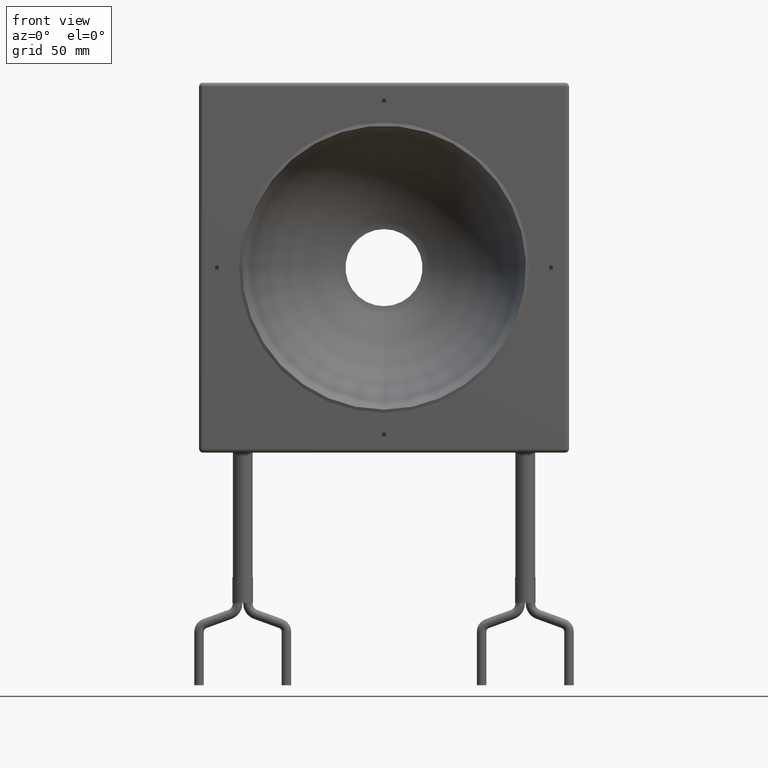
[diagram: clean part render]
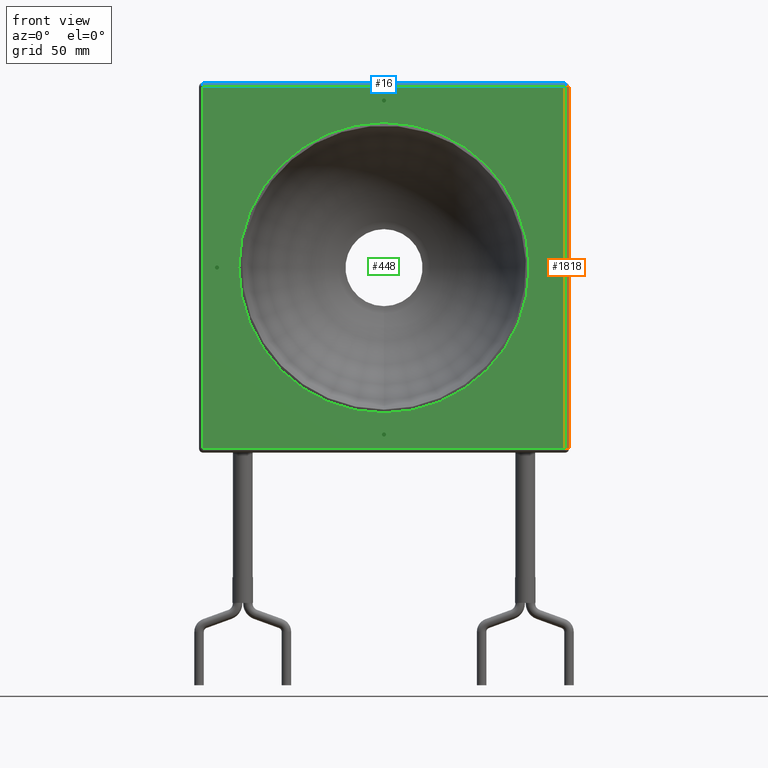
[diagram: same view with three faces highlighted in distinct colors, each labeled with its STEP entity id]
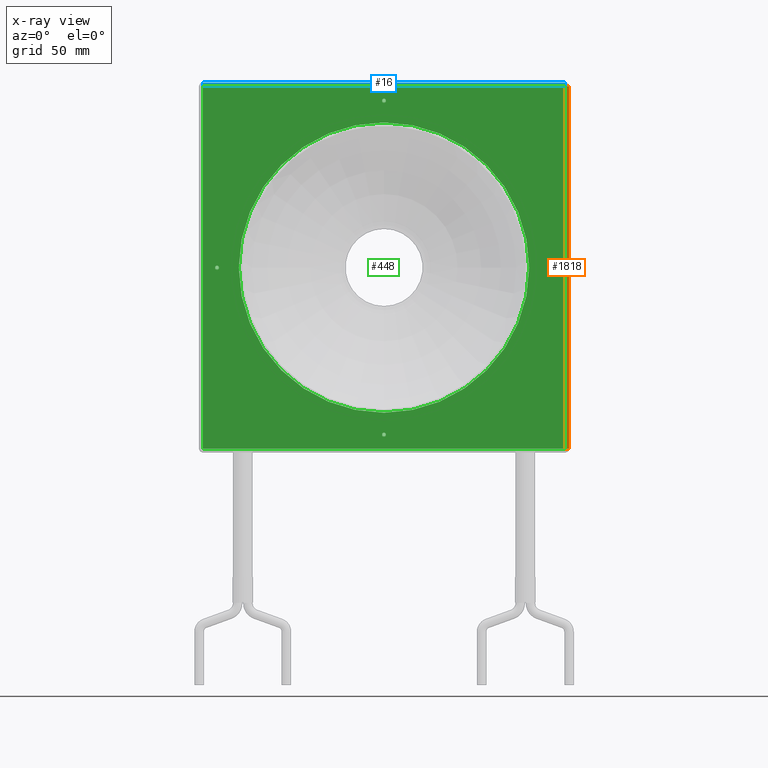
[diagram: x-ray of the same camera — body ghosted, the three highlighted faces saturated]
A machine part, front view with three faces highlighted in distinct colors.
The next image is the same camera in x-ray (body ghosted, the three faces saturated) — at least one of them is partly hidden behind the body in this view.
Their STEP definitions:

[orange] entity #1818 — the highlighted cylindrical surface (edge-blend (fillet) strip) has radius 1.5 mm, axis along (0, -0, -1).
#75 = EDGE_LOOP ( 'NONE', ( #1056, #930, #79, #1327 ) ) ;
#79 = ORIENTED_EDGE ( 'NONE', *, *, #1108, .F. ) ;
#119 = FACE_OUTER_BOUND ( 'NONE', #75, .T. ) ;
#169 = VECTOR ( 'NONE', #637, 1000.000000000000000 ) ;
#193 = CIRCLE ( 'NONE', #1643, 1.500000000000001300 ) ;
#196 = CARTESIAN_POINT ( 'NONE',  ( 70.50000000000000000, -1.565414464721471000E-014, -70.50000000000000000 ) ) ;
#215 = LINE ( 'NONE', #274, #1750 ) ;
#274 = CARTESIAN_POINT ( 'NONE',  ( 70.50000000000000000, -1.487698852997709800E-014, -66.99999999999998600 ) ) ;
#374 = VERTEX_POINT ( 'NONE', #196 ) ;
#407 = EDGE_CURVE ( 'NONE', #1473, #837, #1032, .T. ) ;
#431 = CIRCLE ( 'NONE', #1006, 1.500000000000001300 ) ;
#453 = CARTESIAN_POINT ( 'NONE',  ( 70.50000000000000000, 1.499999999999987800, -70.50000000000000000 ) ) ;
#588 = CARTESIAN_POINT ( 'NONE',  ( 72.00000000000001400, 1.499999999999987600, -72.00000000000000000 ) ) ;
#610 = DIRECTION ( 'NONE',  ( -1.000000000000000000, 0.0000000000000000000, 0.0000000000000000000 ) ) ;
#637 = DIRECTION ( 'NONE',  ( 0.0000000000000000000, -2.220446049250313600E-016, -1.000000000000000000 ) ) ;
#766 = CARTESIAN_POINT ( 'NONE',  ( 70.50000000000000000, 1.499999999999987600, -72.00000000000000000 ) ) ;
#837 = VERTEX_POINT ( 'NONE', #1590 ) ;
#849 = CARTESIAN_POINT ( 'NONE',  ( 70.50000000000000000, 1.500000000000015500, 70.50000000000018500 ) ) ;
#908 = DIRECTION ( 'NONE',  ( 0.0000000000000000000, -2.220446049250313600E-016, -1.000000000000000000 ) ) ;
#924 = AXIS2_PLACEMENT_3D ( 'NONE', #766, #908, #1637 ) ;
#930 = ORIENTED_EDGE ( 'NONE', *, *, #1740, .F. ) ;
#1000 = DIRECTION ( 'NONE',  ( 1.000000000000000000, 0.0000000000000000000, 9.251858538542962800E-015 ) ) ;
#1006 = AXIS2_PLACEMENT_3D ( 'NONE', #849, #1863, #1000 ) ;
#1032 = LINE ( 'NONE', #588, #169 ) ;
#1056 = ORIENTED_EDGE ( 'NONE', *, *, #1494, .T. ) ;
#1108 = EDGE_CURVE ( 'NONE', #837, #374, #193, .T. ) ;
#1172 = VERTEX_POINT ( 'NONE', #1640 ) ;
#1180 = DIRECTION ( 'NONE',  ( -0.0000000000000000000, 2.220446049250313600E-016, 1.000000000000000000 ) ) ;
#1220 = CYLINDRICAL_SURFACE ( 'NONE', #924, 1.500000000000000000 ) ;
#1276 = CARTESIAN_POINT ( 'NONE',  ( 72.00000000000001400, 1.500000000000019100, 70.50000000000019900 ) ) ;
#1327 = ORIENTED_EDGE ( 'NONE', *, *, #407, .F. ) ;
#1473 = VERTEX_POINT ( 'NONE', #1276 ) ;
#1494 = EDGE_CURVE ( 'NONE', #1473, #1172, #431, .T. ) ;
#1498 = DIRECTION ( 'NONE',  ( 0.0000000000000000000, 0.0000000000000000000, -1.000000000000000000 ) ) ;
#1590 = CARTESIAN_POINT ( 'NONE',  ( 72.00000000000001400, 1.499999999999987800, -70.50000000000000000 ) ) ;
#1637 = DIRECTION ( 'NONE',  ( 0.0000000000000000000, 1.000000000000000000, 0.0000000000000000000 ) ) ;
#1640 = CARTESIAN_POINT ( 'NONE',  ( 70.50000000000000000, 1.565414464721475100E-014, 70.50000000000018500 ) ) ;
#1643 = AXIS2_PLACEMENT_3D ( 'NONE', #453, #1498, #610 ) ;
#1740 = EDGE_CURVE ( 'NONE', #374, #1172, #215, .T. ) ;
#1750 = VECTOR ( 'NONE', #1180, 1000.000000000000000 ) ;
#1818 = ADVANCED_FACE ( 'NONE', ( #119 ), #1220, .T. ) ;
#1863 = DIRECTION ( 'NONE',  ( 9.251858538542962800E-015, -0.0000000000000000000, -1.000000000000000000 ) ) ;

[blue] entity #16 — the highlighted cylindrical surface (edge-blend (fillet) strip) has radius 1.5 mm, axis along (-1, 0, 0).
#4 = CARTESIAN_POINT ( 'NONE',  ( -70.49999999999998600, 1.565414464721475100E-014, 70.50000000000018500 ) ) ;
#16 = ADVANCED_FACE ( 'NONE', ( #367 ), #439, .T. ) ;
#219 = VECTOR ( 'NONE', #1416, 1000.000000000000000 ) ;
#233 = EDGE_CURVE ( 'NONE', #1172, #1149, #874, .T. ) ;
#251 = AXIS2_PLACEMENT_3D ( 'NONE', #404, #1457, #564 ) ;
#270 = CARTESIAN_POINT ( 'NONE',  ( -70.49999999999998600, 1.500000000000015500, 70.50000000000018500 ) ) ;
#341 = EDGE_LOOP ( 'NONE', ( #1876, #1169, #627, #591 ) ) ;
#358 = CARTESIAN_POINT ( 'NONE',  ( -71.99999999999998600, 1.500000000000015100, 72.00000000000019900 ) ) ;
#367 = FACE_OUTER_BOUND ( 'NONE', #341, .T. ) ;
#404 = CARTESIAN_POINT ( 'NONE',  ( 70.50000000000000000, 1.500000000000015500, 70.50000000000019900 ) ) ;
#427 = DIRECTION ( 'NONE',  ( 0.0000000000000000000, 0.0000000000000000000, 1.000000000000000000 ) ) ;
#439 = CYLINDRICAL_SURFACE ( 'NONE', #1143, 1.500000000000001300 ) ;
#454 = DIRECTION ( 'NONE',  ( 0.0000000000000000000, 0.0000000000000000000, 1.000000000000000000 ) ) ;
#553 = AXIS2_PLACEMENT_3D ( 'NONE', #270, #1321, #427 ) ;
#564 = DIRECTION ( 'NONE',  ( 0.0000000000000000000, 0.0000000000000000000, -1.000000000000000000 ) ) ;
#591 = ORIENTED_EDGE ( 'NONE', *, *, #233, .F. ) ;
#608 = VECTOR ( 'NONE', #684, 1000.000000000000000 ) ;
#627 = ORIENTED_EDGE ( 'NONE', *, *, #1009, .F. ) ;
#678 = CARTESIAN_POINT ( 'NONE',  ( 72.00000000000001400, 1.565414464721475100E-014, 70.50000000000018500 ) ) ;
#684 = DIRECTION ( 'NONE',  ( -1.000000000000000000, 0.0000000000000000000, 0.0000000000000000000 ) ) ;
#769 = CARTESIAN_POINT ( 'NONE',  ( 72.00000000000001400, 1.500000000000015500, 70.50000000000018500 ) ) ;
#803 = CIRCLE ( 'NONE', #553, 1.500000000000001300 ) ;
#874 = LINE ( 'NONE', #678, #608 ) ;
#889 = CARTESIAN_POINT ( 'NONE',  ( -70.49999999999998600, 1.500000000000015500, 72.00000000000019900 ) ) ;
#1008 = CIRCLE ( 'NONE', #251, 1.500000000000001300 ) ;
#1009 = EDGE_CURVE ( 'NONE', #1149, #1054, #803, .T. ) ;
#1054 = VERTEX_POINT ( 'NONE', #889 ) ;
#1066 = CARTESIAN_POINT ( 'NONE',  ( 70.50000000000000000, 1.500000000000015500, 72.00000000000019900 ) ) ;
#1143 = AXIS2_PLACEMENT_3D ( 'NONE', #769, #1354, #454 ) ;
#1149 = VERTEX_POINT ( 'NONE', #4 ) ;
#1169 = ORIENTED_EDGE ( 'NONE', *, *, #1373, .F. ) ;
#1172 = VERTEX_POINT ( 'NONE', #1640 ) ;
#1321 = DIRECTION ( 'NONE',  ( -1.000000000000000000, 0.0000000000000000000, 0.0000000000000000000 ) ) ;
#1354 = DIRECTION ( 'NONE',  ( -1.000000000000000000, 0.0000000000000000000, 0.0000000000000000000 ) ) ;
#1367 = LINE ( 'NONE', #358, #219 ) ;
#1373 = EDGE_CURVE ( 'NONE', #1054, #1857, #1367, .T. ) ;
#1416 = DIRECTION ( 'NONE',  ( 1.000000000000000000, -0.0000000000000000000, -0.0000000000000000000 ) ) ;
#1457 = DIRECTION ( 'NONE',  ( -1.000000000000000000, -0.0000000000000000000, 0.0000000000000000000 ) ) ;
#1601 = EDGE_CURVE ( 'NONE', #1172, #1857, #1008, .T. ) ;
#1640 = CARTESIAN_POINT ( 'NONE',  ( 70.50000000000000000, 1.565414464721475100E-014, 70.50000000000018500 ) ) ;
#1857 = VERTEX_POINT ( 'NONE', #1066 ) ;
#1876 = ORIENTED_EDGE ( 'NONE', *, *, #1601, .T. ) ;

[green] entity #448 — the highlighted planar face has unit normal (0, -1, 0).
#4 = CARTESIAN_POINT ( 'NONE',  ( -70.49999999999998600, 1.565414464721475100E-014, 70.50000000000018500 ) ) ;
#28 = DIRECTION ( 'NONE',  ( 0.0000000000000000000, -2.220446049250313600E-016, -1.000000000000000000 ) ) ;
#33 = CARTESIAN_POINT ( 'NONE',  ( -7.960204194457797300E-015, -1.461053500406706300E-014, -65.79999999999999700 ) ) ;
#47 = EDGE_LOOP ( 'NONE', ( #1083, #1916, #1267, #980 ) ) ;
#54 = CARTESIAN_POINT ( 'NONE',  ( 65.00000000000000000, 2.549931246368700700E-028, 1.148386941096646300E-012 ) ) ;
#74 = CIRCLE ( 'NONE', #1499, 0.7999999999999951600 ) ;
#101 = DIRECTION ( 'NONE',  ( 0.0000000000000000000, -2.220446049250313100E-016, -1.000000000000000000 ) ) ;
#124 = FACE_BOUND ( 'NONE', #858, .T. ) ;
#151 = VERTEX_POINT ( 'NONE', #649 ) ;
#185 = EDGE_CURVE ( 'NONE', #235, #235, #1305, .T. ) ;
#188 = DIRECTION ( 'NONE',  ( 0.0000000000000000000, -2.220446049250313600E-016, -1.000000000000000000 ) ) ;
#196 = CARTESIAN_POINT ( 'NONE',  ( 70.50000000000000000, -1.565414464721471000E-014, -70.50000000000000000 ) ) ;
#215 = LINE ( 'NONE', #274, #1750 ) ;
#225 = CARTESIAN_POINT ( 'NONE',  ( -7.960204194457797300E-015, -1.443289932012703800E-014, -65.00000000000000000 ) ) ;
#228 = ORIENTED_EDGE ( 'NONE', *, *, #884, .F. ) ;
#233 = EDGE_CURVE ( 'NONE', #1172, #1149, #874, .T. ) ;
#235 = VERTEX_POINT ( 'NONE', #1666 ) ;
#245 = ORIENTED_EDGE ( 'NONE', *, *, #1910, .F. ) ;
#260 = EDGE_LOOP ( 'NONE', ( #1147 ) ) ;
#265 = CIRCLE ( 'NONE', #1190, 0.7999999999999951600 ) ;
#274 = CARTESIAN_POINT ( 'NONE',  ( 70.50000000000000000, -1.487698852997709800E-014, -66.99999999999998600 ) ) ;
#280 = EDGE_CURVE ( 'NONE', #594, #594, #74, .T. ) ;
#374 = VERTEX_POINT ( 'NONE', #196 ) ;
#376 = DIRECTION ( 'NONE',  ( 0.0000000000000000000, -2.220446049250313100E-016, -1.000000000000000000 ) ) ;
#397 = EDGE_CURVE ( 'NONE', #685, #374, #1758, .T. ) ;
#448 = ADVANCED_FACE ( 'NONE', ( #938, #1721, #540, #993, #124, #1671 ), #1313, .T. ) ;
#499 = CARTESIAN_POINT ( 'NONE',  ( -4.406197628981090000E-013, 1.425526363618701700E-014, 64.20000000000001700 ) ) ;
#519 = CARTESIAN_POINT ( 'NONE',  ( -70.49999999999998600, -1.565414464721471000E-014, -70.50000000000000000 ) ) ;
#540 = FACE_BOUND ( 'NONE', #260, .T. ) ;
#569 = ORIENTED_EDGE ( 'NONE', *, *, #1312, .F. ) ;
#594 = VERTEX_POINT ( 'NONE', #33 ) ;
#608 = VECTOR ( 'NONE', #684, 1000.000000000000000 ) ;
#649 = CARTESIAN_POINT ( 'NONE',  ( -65.00000000000000000, -1.776356839401734900E-016, -0.8000000000006682900 ) ) ;
#678 = CARTESIAN_POINT ( 'NONE',  ( 72.00000000000001400, 1.565414464721475100E-014, 70.50000000000018500 ) ) ;
#679 = DIRECTION ( 'NONE',  ( 0.0000000000000000000, -2.220446049250313600E-016, -1.000000000000000000 ) ) ;
#684 = DIRECTION ( 'NONE',  ( -1.000000000000000000, 0.0000000000000000000, 0.0000000000000000000 ) ) ;
#685 = VERTEX_POINT ( 'NONE', #519 ) ;
#697 = ORIENTED_EDGE ( 'NONE', *, *, #185, .T. ) ;
#715 = EDGE_CURVE ( 'NONE', #1149, #685, #870, .T. ) ;
#749 = EDGE_LOOP ( 'NONE', ( #697 ) ) ;
#774 = CIRCLE ( 'NONE', #1797, 0.7999999999999954900 ) ;
#820 = VERTEX_POINT ( 'NONE', #499 ) ;
#827 = CARTESIAN_POINT ( 'NONE',  ( 0.0000000000000000000, 0.0000000000000000000, 0.0000000000000000000 ) ) ;
#858 = EDGE_LOOP ( 'NONE', ( #569 ) ) ;
#868 = CARTESIAN_POINT ( 'NONE',  ( 72.00000000000001400, -1.487698852997709800E-014, -66.99999999999998600 ) ) ;
#870 = LINE ( 'NONE', #1704, #1644 ) ;
#873 = CARTESIAN_POINT ( 'NONE',  ( 72.00000000000001400, -1.565414464721471000E-014, -70.50000000000000000 ) ) ;
#874 = LINE ( 'NONE', #678, #608 ) ;
#879 = DIRECTION ( 'NONE',  ( 1.000000000000000000, -0.0000000000000000000, -0.0000000000000000000 ) ) ;
#884 = EDGE_CURVE ( 'NONE', #820, #820, #265, .T. ) ;
#929 = DIRECTION ( 'NONE',  ( 0.0000000000000000000, -1.000000000000000000, 2.220446049250313600E-016 ) ) ;
#938 = FACE_OUTER_BOUND ( 'NONE', #47, .T. ) ;
#976 = DIRECTION ( 'NONE',  ( 0.0000000000000000000, -1.000000000000000000, 2.220446049250313600E-016 ) ) ;
#977 = DIRECTION ( 'NONE',  ( 0.0000000000000000000, 0.0000000000000000000, -1.000000000000000000 ) ) ;
#980 = ORIENTED_EDGE ( 'NONE', *, *, #397, .T. ) ;
#993 = FACE_BOUND ( 'NONE', #1191, .T. ) ;
#1011 = DIRECTION ( 'NONE',  ( 0.0000000000000000000, -1.000000000000000000, 2.220446049250313600E-016 ) ) ;
#1013 = AXIS2_PLACEMENT_3D ( 'NONE', #827, #1845, #977 ) ;
#1068 = AXIS2_PLACEMENT_3D ( 'NONE', #868, #976, #1480 ) ;
#1083 = ORIENTED_EDGE ( 'NONE', *, *, #1740, .T. ) ;
#1103 = DIRECTION ( 'NONE',  ( 0.0000000000000000000, -1.000000000000000000, 2.220446049250313600E-016 ) ) ;
#1147 = ORIENTED_EDGE ( 'NONE', *, *, #280, .F. ) ;
#1149 = VERTEX_POINT ( 'NONE', #4 ) ;
#1172 = VERTEX_POINT ( 'NONE', #1640 ) ;
#1180 = DIRECTION ( 'NONE',  ( -0.0000000000000000000, 2.220446049250313600E-016, 1.000000000000000000 ) ) ;
#1190 = AXIS2_PLACEMENT_3D ( 'NONE', #1874, #1011, #101 ) ;
#1191 = EDGE_LOOP ( 'NONE', ( #245 ) ) ;
#1267 = ORIENTED_EDGE ( 'NONE', *, *, #715, .T. ) ;
#1277 = DIRECTION ( 'NONE',  ( 0.0000000000000000000, -1.000000000000000000, 2.220446049250313600E-016 ) ) ;
#1305 = CIRCLE ( 'NONE', #1013, 56.49999999999999300 ) ;
#1307 = EDGE_LOOP ( 'NONE', ( #228 ) ) ;
#1312 = EDGE_CURVE ( 'NONE', #1841, #1841, #774, .T. ) ;
#1313 = PLANE ( 'NONE',  #1068 ) ;
#1317 = AXIS2_PLACEMENT_3D ( 'NONE', #1799, #929, #28 ) ;
#1394 = CARTESIAN_POINT ( 'NONE',  ( 65.00000000000000000, -1.776356839397691000E-016, -0.7999999999988470800 ) ) ;
#1480 = DIRECTION ( 'NONE',  ( 0.0000000000000000000, -2.220446049250313600E-016, -1.000000000000000000 ) ) ;
#1499 = AXIS2_PLACEMENT_3D ( 'NONE', #225, #1277, #376 ) ;
#1524 = CIRCLE ( 'NONE', #1317, 0.7999999999999954900 ) ;
#1640 = CARTESIAN_POINT ( 'NONE',  ( 70.50000000000000000, 1.565414464721475100E-014, 70.50000000000018500 ) ) ;
#1644 = VECTOR ( 'NONE', #679, 1000.000000000000000 ) ;
#1666 = CARTESIAN_POINT ( 'NONE',  ( 0.0000000000000000000, 0.0000000000000000000, -56.49999999999999300 ) ) ;
#1671 = FACE_BOUND ( 'NONE', #1307, .T. ) ;
#1704 = CARTESIAN_POINT ( 'NONE',  ( -70.49999999999998600, -1.487698852997709800E-014, -66.99999999999998600 ) ) ;
#1721 = FACE_BOUND ( 'NONE', #749, .T. ) ;
#1740 = EDGE_CURVE ( 'NONE', #374, #1172, #215, .T. ) ;
#1750 = VECTOR ( 'NONE', #1180, 1000.000000000000000 ) ;
#1758 = LINE ( 'NONE', #873, #1800 ) ;
#1797 = AXIS2_PLACEMENT_3D ( 'NONE', #54, #1103, #188 ) ;
#1799 = CARTESIAN_POINT ( 'NONE',  ( -65.00000000000000000, -1.494090755293949400E-028, -6.728786568799531600E-013 ) ) ;
#1800 = VECTOR ( 'NONE', #879, 1000.000000000000000 ) ;
#1841 = VERTEX_POINT ( 'NONE', #1394 ) ;
#1845 = DIRECTION ( 'NONE',  ( 0.0000000000000000000, 1.000000000000000000, -2.220446049250313600E-016 ) ) ;
#1874 = CARTESIAN_POINT ( 'NONE',  ( -4.406197628981090000E-013, 1.443289932012704100E-014, 65.00000000000001400 ) ) ;
#1910 = EDGE_CURVE ( 'NONE', #151, #151, #1524, .T. ) ;
#1916 = ORIENTED_EDGE ( 'NONE', *, *, #233, .T. ) ;